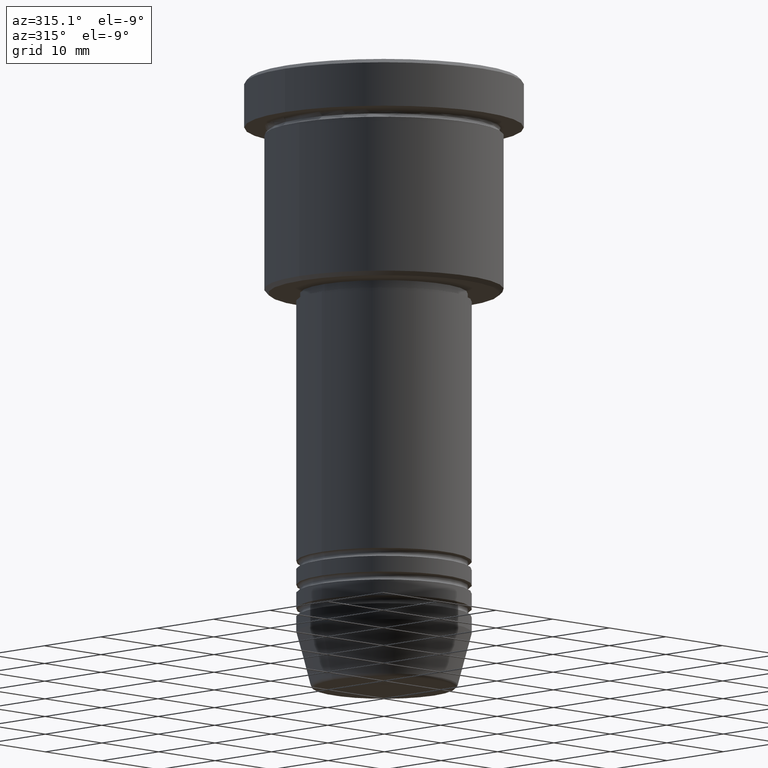
[diagram: clean part render]
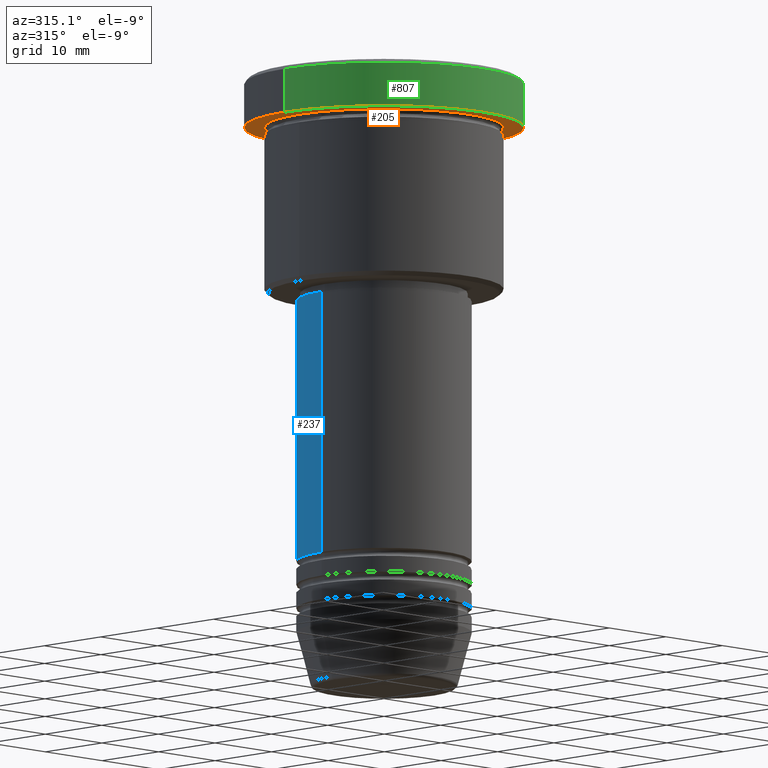
[diagram: same view with three faces highlighted in distinct colors, each labeled with its STEP entity id]
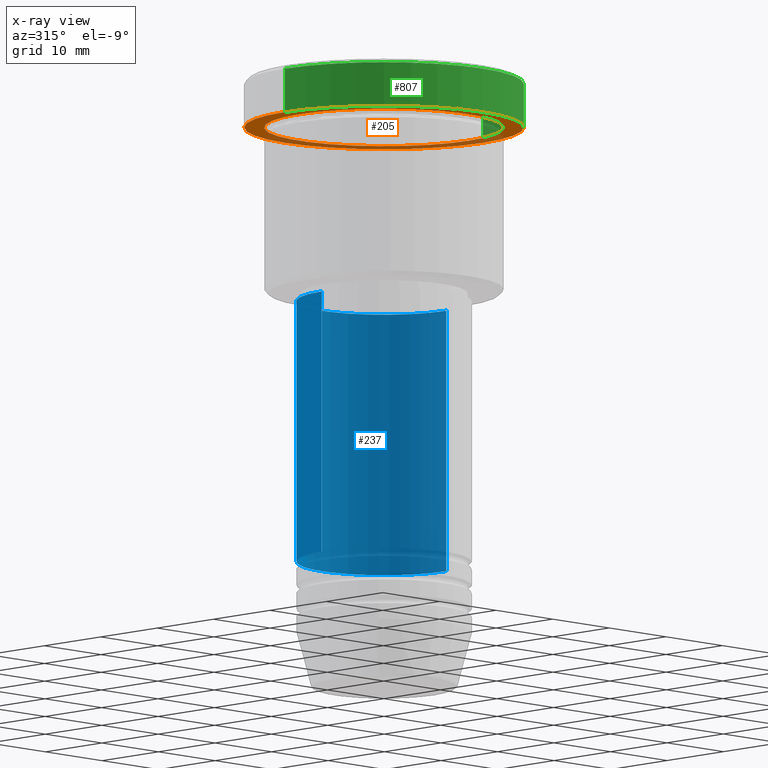
[diagram: x-ray of the same camera — body ghosted, the three highlighted faces saturated]
A machine part, auxiliary view with three faces highlighted in distinct colors.
The next image is the same camera in x-ray (body ghosted, the three faces saturated) — at least one of them is partly hidden behind the body in this view.
Their STEP definitions:

[orange] entity #205 — the highlighted planar face has unit normal (0, 0, -1).
#38 = DIRECTION ( 'NONE',  ( -1.000000000000000000, 0.000000000000000000, 0.000000000000000000 ) ) ;
#105 = VERTEX_POINT ( 'NONE', #554 ) ;
#127 = DIRECTION ( 'NONE',  ( -1.000000000000000000, 0.000000000000000000, -0.000000000000000000 ) ) ;
#144 = EDGE_LOOP ( 'NONE', ( #303, #317 ) ) ;
#150 = EDGE_CURVE ( 'NONE', #474, #105, #973, .T. ) ;
#166 = DIRECTION ( 'NONE',  ( -1.000000000000000000, 0.000000000000000000, 0.000000000000000000 ) ) ;
#167 = PLANE ( 'NONE',  #605 ) ;
#205 = ADVANCED_FACE ( 'NONE', ( #221, #673 ), #167, .T. ) ;
#221 = FACE_BOUND ( 'NONE', #144, .T. ) ;
#247 = VERTEX_POINT ( 'NONE', #321 ) ;
#261 = ORIENTED_EDGE ( 'NONE', *, *, #641, .F. ) ;
#263 = CARTESIAN_POINT ( 'NONE',  ( 0.000000000000000000, 0.000000000000000000, -5.999999999999995559 ) ) ;
#303 = ORIENTED_EDGE ( 'NONE', *, *, #150, .T. ) ;
#304 = DIRECTION ( 'NONE',  ( -0.000000000000000000, -0.000000000000000000, 1.000000000000000000 ) ) ;
#317 = ORIENTED_EDGE ( 'NONE', *, *, #467, .T. ) ;
#321 = CARTESIAN_POINT ( 'NONE',  ( -17.50000000000000000, 2.143131898507868248E-15, -5.999999999999995559 ) ) ;
#336 = CARTESIAN_POINT ( 'NONE',  ( 0.000000000000000000, 0.000000000000000000, -5.999999999999995559 ) ) ;
#349 = DIRECTION ( 'NONE',  ( -0.000000000000000000, -0.000000000000000000, 1.000000000000000000 ) ) ;
#365 = DIRECTION ( 'NONE',  ( 1.000000000000000000, 0.000000000000000000, 0.000000000000000000 ) ) ;
#426 = CIRCLE ( 'NONE', #570, 17.50000000000000000 ) ;
#436 = EDGE_LOOP ( 'NONE', ( #482, #261 ) ) ;
#443 = CIRCLE ( 'NONE', #1107, 17.50000000000000000 ) ;
#451 = VERTEX_POINT ( 'NONE', #1167 ) ;
#467 = EDGE_CURVE ( 'NONE', #105, #474, #882, .T. ) ;
#474 = VERTEX_POINT ( 'NONE', #984 ) ;
#482 = ORIENTED_EDGE ( 'NONE', *, *, #832, .F. ) ;
#504 = DIRECTION ( 'NONE',  ( 0.000000000000000000, 0.000000000000000000, -1.000000000000000000 ) ) ;
#554 = CARTESIAN_POINT ( 'NONE',  ( 15.00000000000000000, 1.836970198721029589E-15, -5.999999999999994671 ) ) ;
#570 = AXIS2_PLACEMENT_3D ( 'NONE', #263, #349, #365 ) ;
#581 = CARTESIAN_POINT ( 'NONE',  ( 0.000000000000000000, 17.50000000000000000, -5.999999999999995559 ) ) ;
#605 = AXIS2_PLACEMENT_3D ( 'NONE', #581, #504, #127 ) ;
#641 = EDGE_CURVE ( 'NONE', #247, #451, #443, .T. ) ;
#654 = CARTESIAN_POINT ( 'NONE',  ( 0.000000000000000000, 0.000000000000000000, -5.999999999999995559 ) ) ;
#673 = FACE_OUTER_BOUND ( 'NONE', #436, .T. ) ;
#723 = AXIS2_PLACEMENT_3D ( 'NONE', #1176, #1045, #38 ) ;
#832 = EDGE_CURVE ( 'NONE', #451, #247, #426, .T. ) ;
#882 = CIRCLE ( 'NONE', #1168, 15.00000000000000000 ) ;
#957 = DIRECTION ( 'NONE',  ( -0.000000000000000000, -0.000000000000000000, 1.000000000000000000 ) ) ;
#973 = CIRCLE ( 'NONE', #723, 15.00000000000000000 ) ;
#984 = CARTESIAN_POINT ( 'NONE',  ( -15.00000000000000000, 0.000000000000000000, -5.999999999999994671 ) ) ;
#1022 = DIRECTION ( 'NONE',  ( 1.000000000000000000, 0.000000000000000000, 0.000000000000000000 ) ) ;
#1045 = DIRECTION ( 'NONE',  ( -0.000000000000000000, -0.000000000000000000, 1.000000000000000000 ) ) ;
#1107 = AXIS2_PLACEMENT_3D ( 'NONE', #654, #304, #1022 ) ;
#1167 = CARTESIAN_POINT ( 'NONE',  ( 17.50000000000000000, 0.000000000000000000, -5.999999999999995559 ) ) ;
#1168 = AXIS2_PLACEMENT_3D ( 'NONE', #336, #957, #166 ) ;
#1176 = CARTESIAN_POINT ( 'NONE',  ( 0.000000000000000000, 0.000000000000000000, -5.999999999999995559 ) ) ;

[blue] entity #237 — the highlighted cylindrical surface (partial cylindrical patch) has radius 11 mm, axis along (-0, -0, 1).
#19 = VERTEX_POINT ( 'NONE', #752 ) ;
#32 = EDGE_CURVE ( 'NONE', #19, #603, #1117, .T. ) ;
#50 = DIRECTION ( 'NONE',  ( -0.000000000000000000, -0.000000000000000000, 1.000000000000000000 ) ) ;
#58 = ORIENTED_EDGE ( 'NONE', *, *, #32, .T. ) ;
#73 = VERTEX_POINT ( 'NONE', #834 ) ;
#77 = CYLINDRICAL_SURFACE ( 'NONE', #590, 11.00000000000000000 ) ;
#79 = VECTOR ( 'NONE', #656, 1000.000000000000000 ) ;
#103 = CARTESIAN_POINT ( 'NONE',  ( -11.00000000000000000, 1.347111479062088405E-15, 0.000000000000000000 ) ) ;
#142 = CIRCLE ( 'NONE', #979, 11.00000000000000000 ) ;
#154 = CARTESIAN_POINT ( 'NONE',  ( 11.00000000000000000, 0.000000000000000000, 0.000000000000000000 ) ) ;
#237 = ADVANCED_FACE ( 'NONE', ( #412 ), #77, .T. ) ;
#256 = CARTESIAN_POINT ( 'NONE',  ( 0.000000000000000000, 0.000000000000000000, -28.00000000000000711 ) ) ;
#339 = DIRECTION ( 'NONE',  ( -0.000000000000000000, -0.000000000000000000, 1.000000000000000000 ) ) ;
#401 = ORIENTED_EDGE ( 'NONE', *, *, #735, .F. ) ;
#412 = FACE_OUTER_BOUND ( 'NONE', #555, .T. ) ;
#421 = LINE ( 'NONE', #154, #550 ) ;
#468 = ORIENTED_EDGE ( 'NONE', *, *, #489, .F. ) ;
#483 = CARTESIAN_POINT ( 'NONE',  ( -11.00000000000000000, 1.347111479062088405E-15, -28.00000000000000711 ) ) ;
#489 = EDGE_CURVE ( 'NONE', #73, #603, #992, .T. ) ;
#514 = AXIS2_PLACEMENT_3D ( 'NONE', #256, #50, #782 ) ;
#550 = VECTOR ( 'NONE', #339, 1000.000000000000000 ) ;
#555 = EDGE_LOOP ( 'NONE', ( #712, #58, #468, #401 ) ) ;
#590 = AXIS2_PLACEMENT_3D ( 'NONE', #778, #1143, #945 ) ;
#603 = VERTEX_POINT ( 'NONE', #483 ) ;
#656 = DIRECTION ( 'NONE',  ( -0.000000000000000000, -0.000000000000000000, 1.000000000000000000 ) ) ;
#712 = ORIENTED_EDGE ( 'NONE', *, *, #925, .T. ) ;
#735 = EDGE_CURVE ( 'NONE', #920, #73, #421, .T. ) ;
#752 = CARTESIAN_POINT ( 'NONE',  ( -11.00000000000000000, 1.347111479062088405E-15, -60.99999999999998579 ) ) ;
#759 = CARTESIAN_POINT ( 'NONE',  ( 0.000000000000000000, 0.000000000000000000, -60.99999999999998579 ) ) ;
#778 = CARTESIAN_POINT ( 'NONE',  ( 0.000000000000000000, 0.000000000000000000, 0.000000000000000000 ) ) ;
#782 = DIRECTION ( 'NONE',  ( 1.000000000000000000, 0.000000000000000000, 0.000000000000000000 ) ) ;
#834 = CARTESIAN_POINT ( 'NONE',  ( 11.00000000000000000, 0.000000000000000000, -28.00000000000000711 ) ) ;
#918 = DIRECTION ( 'NONE',  ( -0.000000000000000000, -0.000000000000000000, 1.000000000000000000 ) ) ;
#920 = VERTEX_POINT ( 'NONE', #1025 ) ;
#925 = EDGE_CURVE ( 'NONE', #920, #19, #142, .T. ) ;
#945 = DIRECTION ( 'NONE',  ( 1.000000000000000000, 0.000000000000000000, 0.000000000000000000 ) ) ;
#979 = AXIS2_PLACEMENT_3D ( 'NONE', #759, #918, #1004 ) ;
#992 = CIRCLE ( 'NONE', #514, 11.00000000000000000 ) ;
#1004 = DIRECTION ( 'NONE',  ( 1.000000000000000000, 0.000000000000000000, 0.000000000000000000 ) ) ;
#1025 = CARTESIAN_POINT ( 'NONE',  ( 11.00000000000000000, 0.000000000000000000, -60.99999999999998579 ) ) ;
#1117 = LINE ( 'NONE', #103, #79 ) ;
#1143 = DIRECTION ( 'NONE',  ( -0.000000000000000000, -0.000000000000000000, 1.000000000000000000 ) ) ;

[green] entity #807 — the highlighted cylindrical surface (partial cylindrical patch) has radius 17.5 mm, axis along (-0, -0, 1).
#90 = CARTESIAN_POINT ( 'NONE',  ( -17.50000000000000000, 2.143131898507868248E-15, -0.4999999999999726885 ) ) ;
#98 = EDGE_LOOP ( 'NONE', ( #312, #820, #1041, #733 ) ) ;
#123 = DIRECTION ( 'NONE',  ( -0.000000000000000000, -0.000000000000000000, 1.000000000000000000 ) ) ;
#158 = LINE ( 'NONE', #332, #809 ) ;
#247 = VERTEX_POINT ( 'NONE', #321 ) ;
#264 = VERTEX_POINT ( 'NONE', #90 ) ;
#304 = DIRECTION ( 'NONE',  ( -0.000000000000000000, -0.000000000000000000, 1.000000000000000000 ) ) ;
#312 = ORIENTED_EDGE ( 'NONE', *, *, #980, .F. ) ;
#321 = CARTESIAN_POINT ( 'NONE',  ( -17.50000000000000000, 2.143131898507868248E-15, -5.999999999999995559 ) ) ;
#329 = AXIS2_PLACEMENT_3D ( 'NONE', #542, #890, #802 ) ;
#332 = CARTESIAN_POINT ( 'NONE',  ( 17.50000000000000000, 0.000000000000000000, 0.000000000000000000 ) ) ;
#342 = CARTESIAN_POINT ( 'NONE',  ( 0.000000000000000000, 0.000000000000000000, -0.4999999999999726885 ) ) ;
#443 = CIRCLE ( 'NONE', #1107, 17.50000000000000000 ) ;
#451 = VERTEX_POINT ( 'NONE', #1167 ) ;
#523 = FACE_OUTER_BOUND ( 'NONE', #98, .T. ) ;
#542 = CARTESIAN_POINT ( 'NONE',  ( 0.000000000000000000, 0.000000000000000000, 0.000000000000000000 ) ) ;
#584 = DIRECTION ( 'NONE',  ( 0.000000000000000000, 0.000000000000000000, -1.000000000000000000 ) ) ;
#591 = AXIS2_PLACEMENT_3D ( 'NONE', #342, #584, #685 ) ;
#641 = EDGE_CURVE ( 'NONE', #247, #451, #443, .T. ) ;
#644 = CIRCLE ( 'NONE', #591, 17.50000000000000000 ) ;
#654 = CARTESIAN_POINT ( 'NONE',  ( 0.000000000000000000, 0.000000000000000000, -5.999999999999995559 ) ) ;
#685 = DIRECTION ( 'NONE',  ( 1.000000000000000000, 0.000000000000000000, 0.000000000000000000 ) ) ;
#688 = VECTOR ( 'NONE', #123, 1000.000000000000000 ) ;
#702 = CYLINDRICAL_SURFACE ( 'NONE', #329, 17.50000000000000000 ) ;
#733 = ORIENTED_EDGE ( 'NONE', *, *, #784, .T. ) ;
#784 = EDGE_CURVE ( 'NONE', #895, #264, #644, .T. ) ;
#802 = DIRECTION ( 'NONE',  ( 1.000000000000000000, 0.000000000000000000, 0.000000000000000000 ) ) ;
#807 = ADVANCED_FACE ( 'NONE', ( #523 ), #702, .T. ) ;
#809 = VECTOR ( 'NONE', #953, 1000.000000000000000 ) ;
#820 = ORIENTED_EDGE ( 'NONE', *, *, #641, .T. ) ;
#890 = DIRECTION ( 'NONE',  ( -0.000000000000000000, -0.000000000000000000, 1.000000000000000000 ) ) ;
#894 = CARTESIAN_POINT ( 'NONE',  ( 17.50000000000000000, 0.000000000000000000, -0.4999999999999726885 ) ) ;
#895 = VERTEX_POINT ( 'NONE', #894 ) ;
#935 = LINE ( 'NONE', #1014, #688 ) ;
#953 = DIRECTION ( 'NONE',  ( -0.000000000000000000, -0.000000000000000000, 1.000000000000000000 ) ) ;
#980 = EDGE_CURVE ( 'NONE', #247, #264, #935, .T. ) ;
#1014 = CARTESIAN_POINT ( 'NONE',  ( -17.50000000000000000, 2.143131898507868248E-15, 0.000000000000000000 ) ) ;
#1022 = DIRECTION ( 'NONE',  ( 1.000000000000000000, 0.000000000000000000, 0.000000000000000000 ) ) ;
#1041 = ORIENTED_EDGE ( 'NONE', *, *, #1142, .T. ) ;
#1107 = AXIS2_PLACEMENT_3D ( 'NONE', #654, #304, #1022 ) ;
#1142 = EDGE_CURVE ( 'NONE', #451, #895, #158, .T. ) ;
#1167 = CARTESIAN_POINT ( 'NONE',  ( 17.50000000000000000, 0.000000000000000000, -5.999999999999995559 ) ) ;